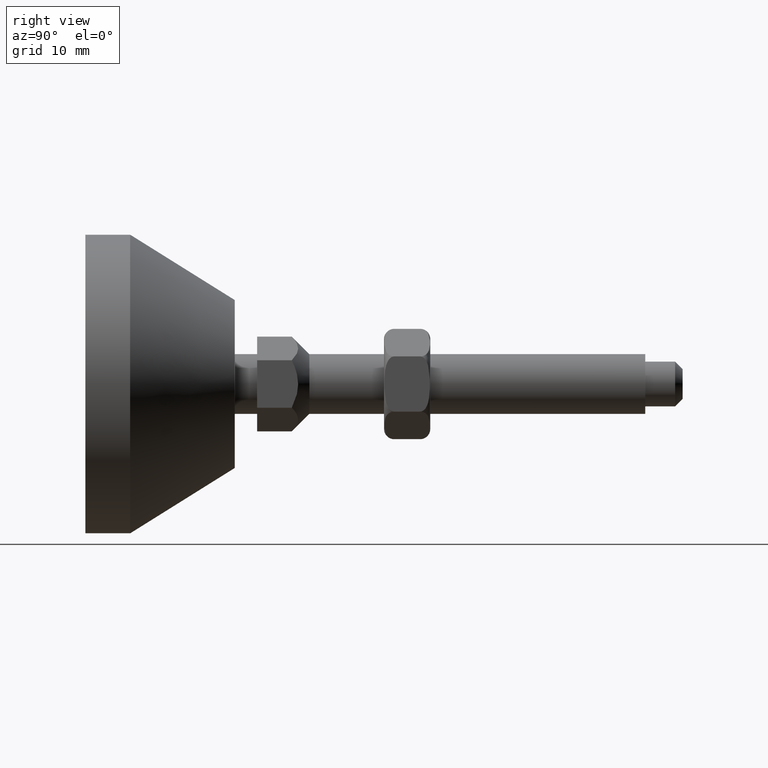
[diagram: clean part render]
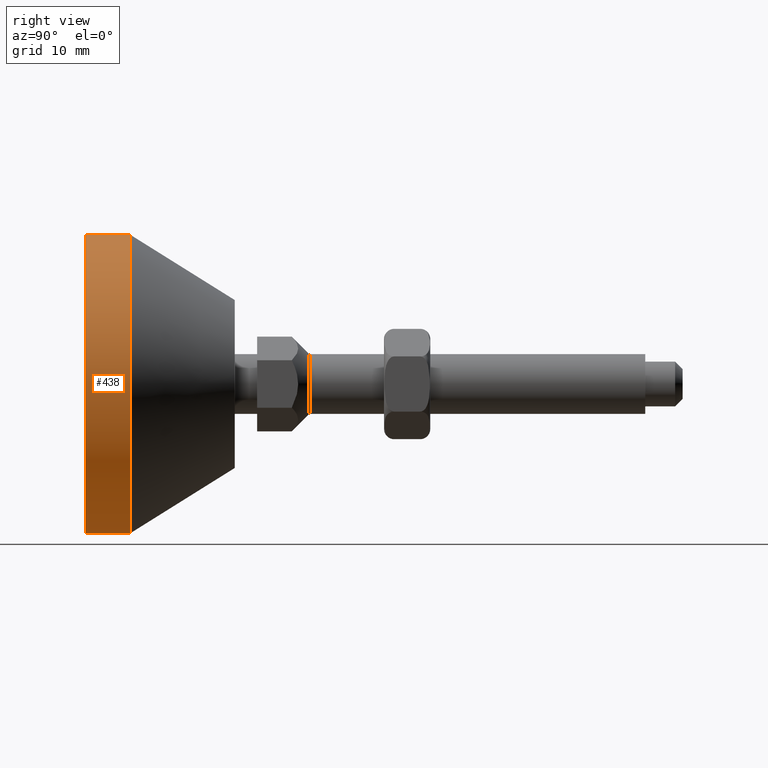
[diagram: same view with one face highlighted and labeled with its STEP entity id]
A machine part, right view. The second image highlights one B-rep face of the part: STEP entity #438.
In plain terms, the highlighted cylindrical surface (partial cylindrical patch) has radius 20 mm, axis along (-0, -1, -0).
Its self-contained STEP definition (entity closure, byte-faithful):
#75 = CARTESIAN_POINT ( 'NONE',  ( 0.0000000000000000000, 0.0000000000000000000, -20.00000000000000000 ) ) ;
#89 = CARTESIAN_POINT ( 'NONE',  ( 2.449293598294706500E-015, 6.000000000000000000, 20.00000000000000000 ) ) ;
#173 = CARTESIAN_POINT ( 'NONE',  ( 2.449293598294706500E-015, 0.0000000000000000000, 20.00000000000000000 ) ) ;
#183 = CARTESIAN_POINT ( 'NONE',  ( 0.0000000000000000000, 6.000000000000000000, -20.00000000000000000 ) ) ;
#247 = VERTEX_POINT ( 'NONE', #183 ) ;
#267 = VERTEX_POINT ( 'NONE', #173 ) ;
#271 = CARTESIAN_POINT ( 'NONE',  ( 0.0000000000000000000, 6.000000000000000000, 0.0000000000000000000 ) ) ;
#274 = DIRECTION ( 'NONE',  ( -0.0000000000000000000, -1.000000000000000000, -0.0000000000000000000 ) ) ;
#277 = DIRECTION ( 'NONE',  ( 0.0000000000000000000, 0.0000000000000000000, -1.000000000000000000 ) ) ;
#349 = ORIENTED_EDGE ( 'NONE', *, *, #509, .F. ) ;
#438 = ADVANCED_FACE ( 'NONE', ( #654 ), #655, .T. ) ;
#509 = EDGE_CURVE ( 'NONE', #1475, #247, #743, .T. ) ;
#510 = EDGE_CURVE ( 'NONE', #1475, #267, #742, .T. ) ;
#511 = EDGE_CURVE ( 'NONE', #267, #1461, #746, .T. ) ;
#512 = EDGE_CURVE ( 'NONE', #247, #1461, #745, .T. ) ;
#575 = ORIENTED_EDGE ( 'NONE', *, *, #510, .T. ) ;
#576 = ORIENTED_EDGE ( 'NONE', *, *, #511, .T. ) ;
#577 = ORIENTED_EDGE ( 'NONE', *, *, #512, .F. ) ;
#654 = FACE_OUTER_BOUND ( 'NONE', #1492, .T. ) ;
#655 = CYLINDRICAL_SURFACE ( 'NONE', #1428, 20.00000000000000000 ) ;
#742 = LINE ( 'NONE', #1160, #744 ) ;
#743 = CIRCLE ( 'NONE', #1013, 20.00000000000000000 ) ;
#744 = VECTOR ( 'NONE', #1161, 1000.000000000000000 ) ;
#745 = LINE ( 'NONE', #1165, #747 ) ;
#746 = CIRCLE ( 'NONE', #1014, 20.00000000000000000 ) ;
#747 = VECTOR ( 'NONE', #1166, 1000.000000000000000 ) ;
#1013 = AXIS2_PLACEMENT_3D ( 'NONE', #1157, #1158, #1159 ) ;
#1014 = AXIS2_PLACEMENT_3D ( 'NONE', #1162, #1163, #1164 ) ;
#1157 = CARTESIAN_POINT ( 'NONE',  ( 0.0000000000000000000, 6.000000000000000000, 0.0000000000000000000 ) ) ;
#1158 = DIRECTION ( 'NONE',  ( 0.0000000000000000000, 1.000000000000000000, 0.0000000000000000000 ) ) ;
#1159 = DIRECTION ( 'NONE',  ( 0.0000000000000000000, 0.0000000000000000000, 1.000000000000000000 ) ) ;
#1160 = CARTESIAN_POINT ( 'NONE',  ( 2.449293598294706500E-015, 6.000000000000000000, 20.00000000000000000 ) ) ;
#1161 = DIRECTION ( 'NONE',  ( -0.0000000000000000000, -1.000000000000000000, -0.0000000000000000000 ) ) ;
#1162 = CARTESIAN_POINT ( 'NONE',  ( 0.0000000000000000000, 0.0000000000000000000, 0.0000000000000000000 ) ) ;
#1163 = DIRECTION ( 'NONE',  ( 0.0000000000000000000, 1.000000000000000000, 0.0000000000000000000 ) ) ;
#1164 = DIRECTION ( 'NONE',  ( 0.0000000000000000000, 0.0000000000000000000, 1.000000000000000000 ) ) ;
#1165 = CARTESIAN_POINT ( 'NONE',  ( 0.0000000000000000000, 6.000000000000000000, -20.00000000000000000 ) ) ;
#1166 = DIRECTION ( 'NONE',  ( -0.0000000000000000000, -1.000000000000000000, -0.0000000000000000000 ) ) ;
#1428 = AXIS2_PLACEMENT_3D ( 'NONE', #271, #274, #277 ) ;
#1461 = VERTEX_POINT ( 'NONE', #75 ) ;
#1475 = VERTEX_POINT ( 'NONE', #89 ) ;
#1492 = EDGE_LOOP ( 'NONE', ( #349, #575, #576, #577 ) ) ;